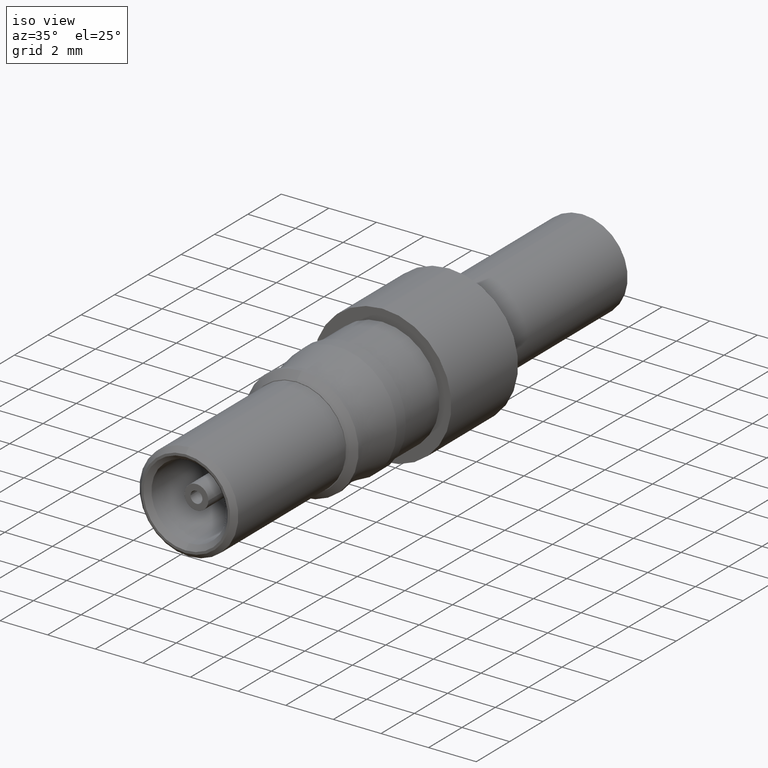
[diagram: clean part render]
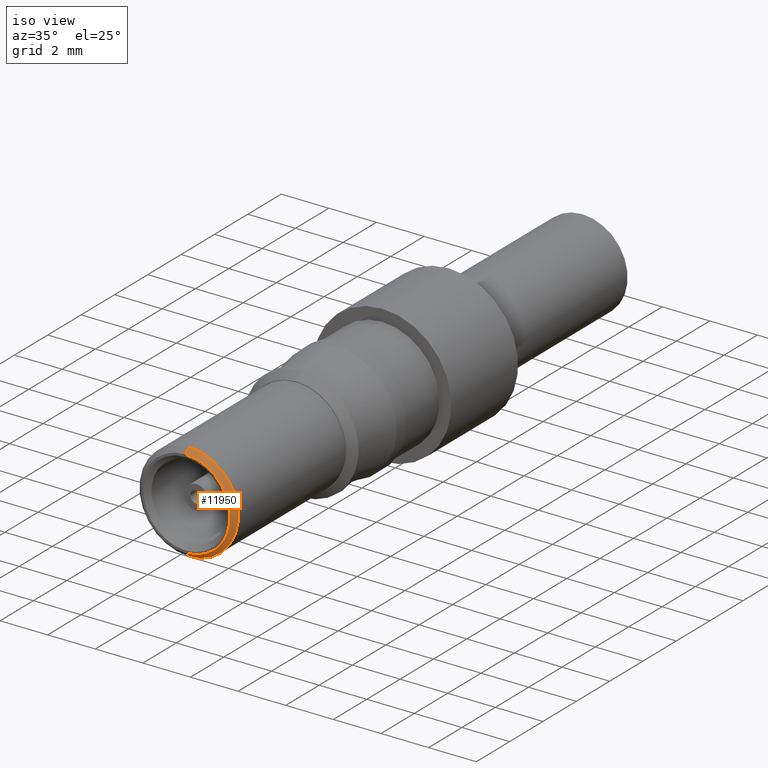
[diagram: same view with one face highlighted and labeled with its STEP entity id]
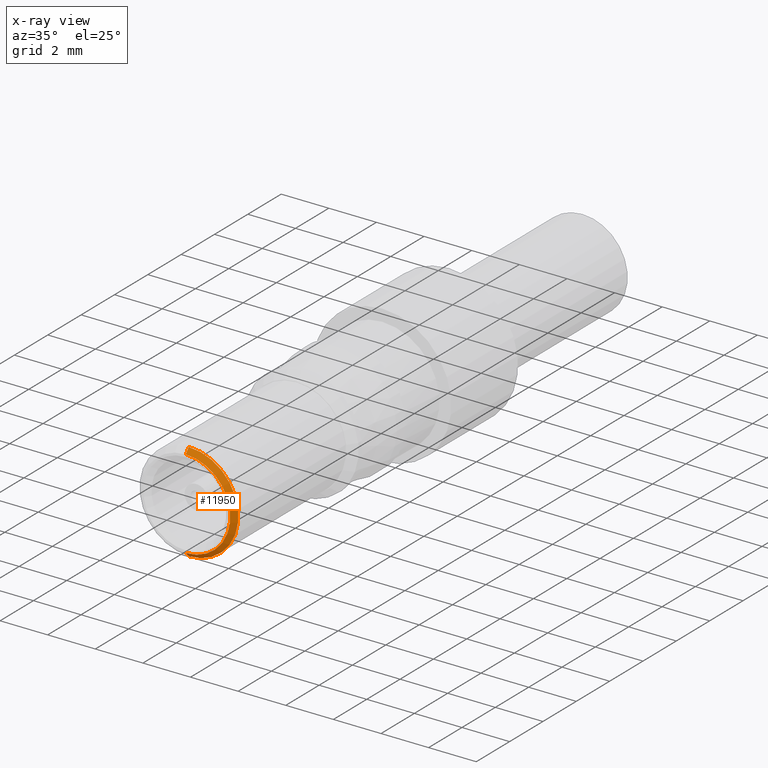
[diagram: x-ray of the same camera — body ghosted, the highlighted face saturated]
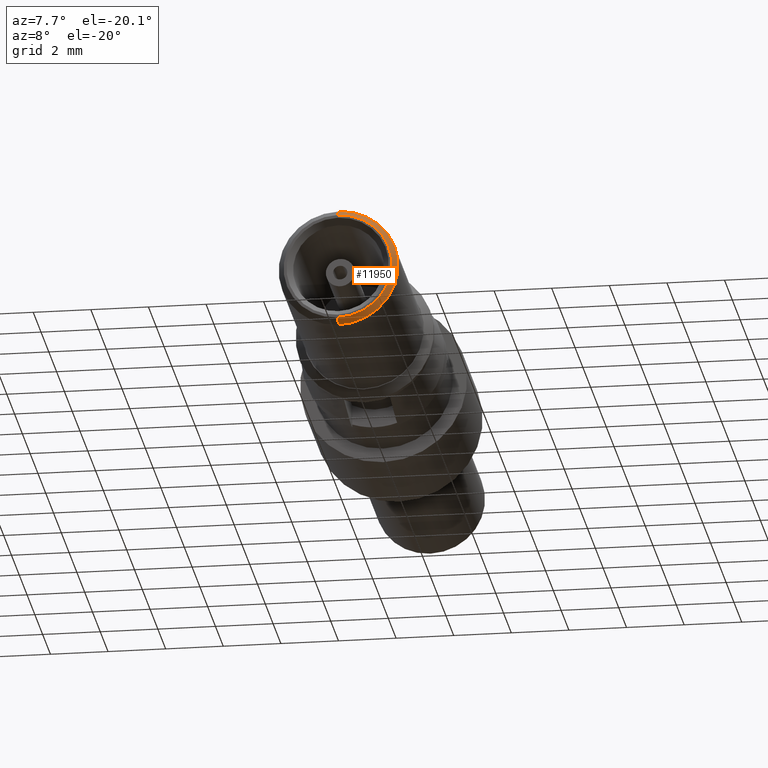
[diagram: same view with one face highlighted and labeled with its STEP entity id]
A machine part, iso view. The second image highlights one B-rep face of the part: STEP entity #11950.
The next image is the same camera in x-ray: the body ghosted, the highlighted face saturated — about 0% of this face is hidden behind the body in this view.
A second angle (auxiliary view) of the same face is appended — the face is thin or edge-on in the first view.
In plain terms, the highlighted conical surface has half-angle 45 deg.
Its self-contained STEP definition (entity closure, byte-faithful):
#2290=CARTESIAN_POINT('',(66.6468230000002,77.3795149999963,
-21.0499999999995));
#2300=DIRECTION('',(0.,0.,-1.));
#2310=DIRECTION('',(0.,-1.,0.));
#2320=AXIS2_PLACEMENT_3D('',#2290,#2300,#2310);
#2330=CIRCLE('',#2320,1.875);
#2340=CARTESIAN_POINT('',(66.6468230000002,79.2545149999963,
-21.0499999999995));
#2350=VERTEX_POINT('',#2340);
#2360=CARTESIAN_POINT('',(66.6468230000002,75.5045149999963,
-21.0499999999995));
#2370=VERTEX_POINT('',#2360);
#2400=EDGE_CURVE('',#2370,#2350,#2330,.T.);
#5480=CARTESIAN_POINT('',(66.6468230000002,79.4545149999963,
-20.8499999999995));
#5490=VERTEX_POINT('',#5480);
#5570=CARTESIAN_POINT('',(66.6468230000002,75.3045149999963,
-20.8499999999995));
#5580=VERTEX_POINT('',#5570);
#5610=CARTESIAN_POINT('',(66.6468230000002,77.3795149999963,
-20.8499999999995));
#5620=DIRECTION('',(0.,0.,-1.));
#5630=DIRECTION('',(0.,-1.,0.));
#5640=AXIS2_PLACEMENT_3D('',#5610,#5620,#5630);
#5650=CIRCLE('',#5640,2.075);
#5660=EDGE_CURVE('',#5580,#5490,#5650,.T.);
#11740=CARTESIAN_POINT('',(66.6468230000002,77.3795149999963,
-21.0499999999995));
#11750=DIRECTION('',(0.,0.,1.));
#11760=DIRECTION('',(0.,1.,0.));
#11770=AXIS2_PLACEMENT_3D('',#11740,#11750,#11760);
#11780=CONICAL_SURFACE('',#11770,1.875,0.78539816339745);
#11790=CARTESIAN_POINT('',(66.6468230000002,79.2545149999963,
-21.0499999999995));
#11800=DIRECTION('',(0.,0.707106781186549,0.707106781186546));
#11810=VECTOR('',#11800,2.65165042944955);
#11820=LINE('',#11790,#11810);
#11830=EDGE_CURVE('',#2350,#5490,#11820,.T.);
#11840=ORIENTED_EDGE('',*,*,#11830,.F.);
#11850=ORIENTED_EDGE('',*,*,#5660,.T.);
#11860=CARTESIAN_POINT('',(66.6468230000002,75.5045149999963,
-21.0499999999995));
#11870=DIRECTION('',(0.,-0.707106781186549,0.707106781186546));
#11880=VECTOR('',#11870,2.65165042944955);
#11890=LINE('',#11860,#11880);
#11900=EDGE_CURVE('',#2370,#5580,#11890,.T.);
#11910=ORIENTED_EDGE('',*,*,#11900,.T.);
#11920=ORIENTED_EDGE('',*,*,#2400,.F.);
#11930=EDGE_LOOP('',(#11920,#11910,#11850,#11840));
#11940=FACE_OUTER_BOUND('',#11930,.T.);
#11950=ADVANCED_FACE('',(#11940),#11780,.T.);